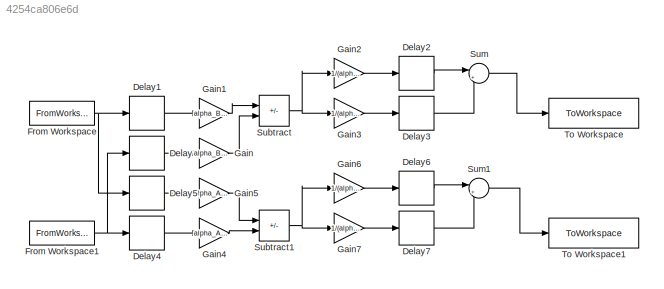
MODEL slx_4254ca806e6d
KIND model
CONFIG AbsTol = auto
CONFIG EnableMultiTasking = off
CONFIG FixedStep = 1/Fs
CONFIG MaxStep = auto
CONFIG MinStep = auto
CONFIG RelTol = 1e-3
CONFIG SampleTimeConstraint = Unconstrained
CONFIG SolverName = FixedStepAuto
CONFIG StartTime = 0.0
CONFIG StopTime = 10
BLOCK [Delay] Delay
  DelayLength = beta_BC_d
  InitialCondition = 0
  InputPortMap = u0
BLOCK [Delay] Delay1
  DelayLength = beta_BD_d
  InitialCondition = 0
  InputPortMap = u0
BLOCK [Delay] Delay2
  DelayLength = beta_BC_d+beta_AD_d
  InitialCondition = 0
  InputPortMap = u0
BLOCK [Delay] Delay3
  DelayLength = beta_BD_d+beta_AC_d
  InitialCondition = 0
  InputPortMap = u0
BLOCK [Delay] Delay4
  DelayLength = beta_AC_d
  InitialCondition = 0
  InputPortMap = u0
BLOCK [Delay] Delay5
  DelayLength = beta_AD_d
  InitialCondition = 0
  InputPortMap = u0
BLOCK [Delay] Delay6
  DelayLength = beta_AC_d+beta_BD_d
  InitialCondition = 0
  InputPortMap = u0
BLOCK [Delay] Delay7
  DelayLength = beta_BC_d+beta_AD_d
  InitialCondition = 0
  InputPortMap = u0
BLOCK [FromWorkspace] From Workspace
  OutputAfterFinalValue = Setting to zero
  VariableName = C
BLOCK [FromWorkspace] From Workspace1
  OutputAfterFinalValue = Setting to zero
  VariableName = D
BLOCK [Gain] Gain
  Gain = alpha_BC_d
BLOCK [Gain] Gain1
  Gain = alpha_BD_d
BLOCK [Gain] Gain2
  Gain = 1/(alpha_BD_d*alpha_AC_d)
BLOCK [Gain] Gain3
  Gain = 1/(alpha_BC_d*alpha_AD_d)
BLOCK [Gain] Gain4
  Gain = alpha_AC_d
BLOCK [Gain] Gain5
  Gain = alpha_AD_d
BLOCK [Gain] Gain6
  Gain = 1/(alpha_BC_d*alpha_AD_d)
BLOCK [Gain] Gain7
  Gain = 1/(alpha_AC_d*alpha_BD_d)
BLOCK [Sum] Subtract
  IconShape = rectangular
  Inputs = +-
BLOCK [Sum] Subtract1
  IconShape = rectangular
  Inputs = +-
BLOCK [Sum] Sum
  Inputs = |++
BLOCK [Sum] Sum1
  Inputs = |++
BLOCK [ToWorkspace] To Workspace
  FixptAsFi = on
  MaxDataPoints = inf
  SampleTime = -1
  Save2DSignal = 2-D array (concatenate along first dimension)
  VariableName = A_Recov
BLOCK [ToWorkspace] To Workspace1
  FixptAsFi = on
  MaxDataPoints = inf
  SampleTime = -1
  Save2DSignal = 2-D array (concatenate along first dimension)
  VariableName = B_Recov
LINE Delay1:1 -> Gain1:1
LINE Delay2:1 -> Sum:1
LINE Delay3:1 -> Sum:2
LINE Delay4:1 -> Gain4:1
LINE Delay5:1 -> Gain5:1
LINE Delay6:1 -> Sum1:1
LINE Delay7:1 -> Sum1:2
LINE Delay:1 -> Gain:1
NET From Workspace1:1 -> Delay4:1, Delay:1
NET From Workspace:1 -> Delay1:1, Delay5:1
LINE Gain1:1 -> Subtract:1
LINE Gain2:1 -> Delay2:1
LINE Gain3:1 -> Delay3:1
LINE Gain4:1 -> Subtract1:2
LINE Gain5:1 -> Subtract1:1
LINE Gain6:1 -> Delay6:1
LINE Gain7:1 -> Delay7:1
LINE Gain:1 -> Subtract:2
NET Subtract1:1 -> Gain6:1, Gain7:1
NET Subtract:1 -> Gain2:1, Gain3:1
LINE Sum1:1 -> To Workspace1:1
LINE Sum:1 -> To Workspace:1
note: NET lines group one-source signal fan-out (src -> all destinations, sorted); 1:1 wires keep LINE
